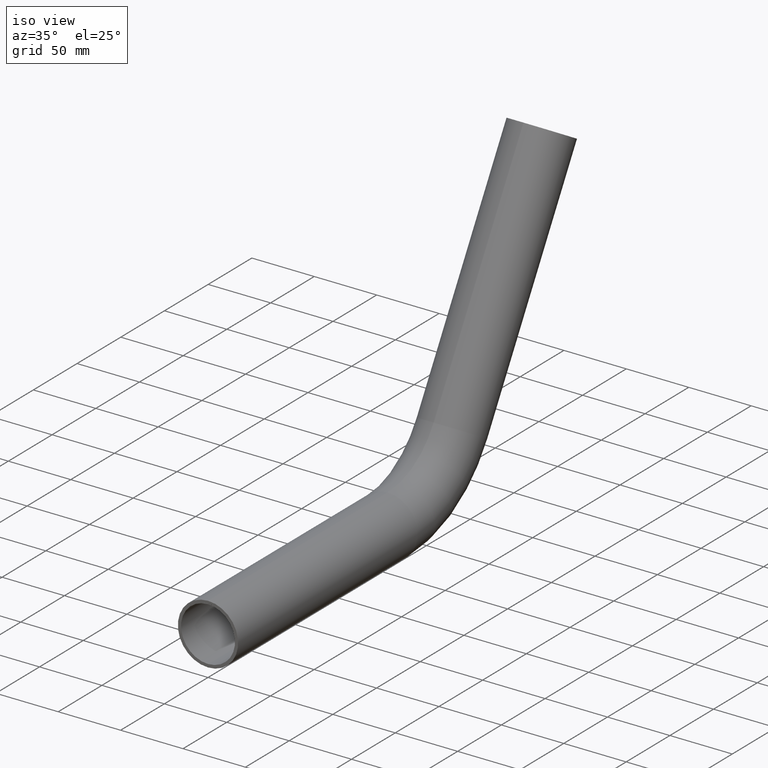
[diagram: clean part render]
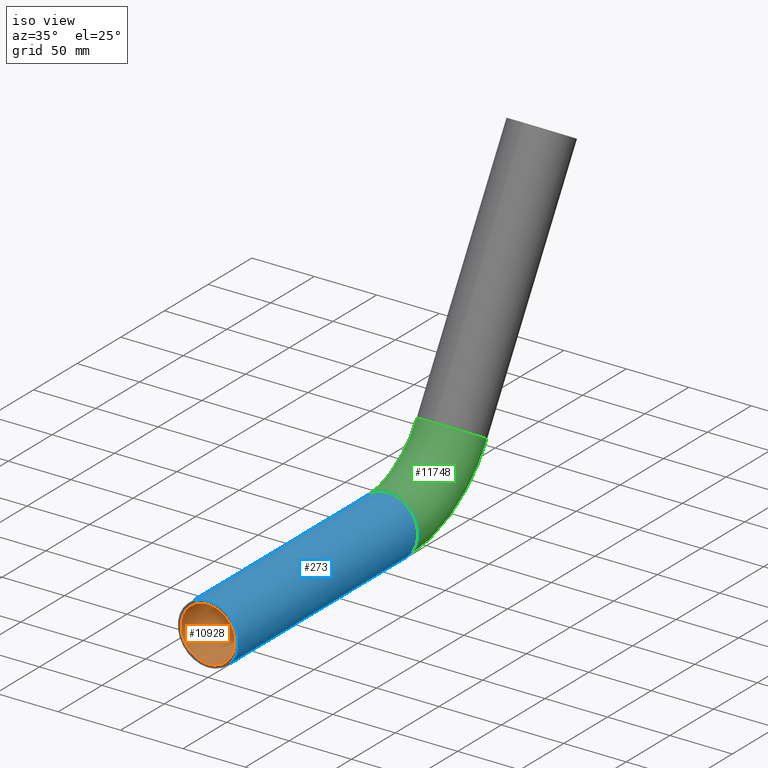
[diagram: same view with three faces highlighted in distinct colors, each labeled with its STEP entity id]
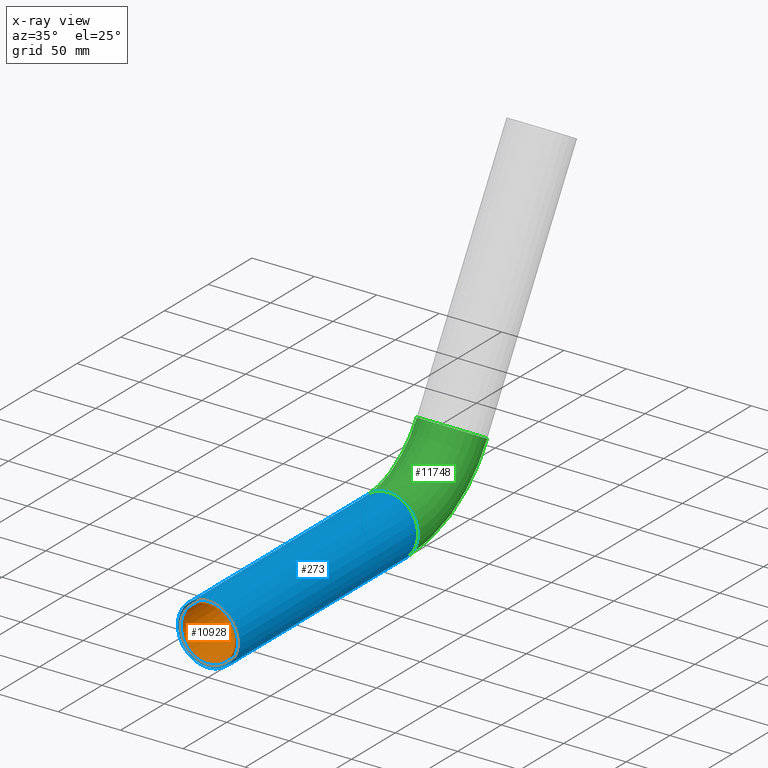
[diagram: x-ray of the same camera — body ghosted, the three highlighted faces saturated]
A machine part, iso view with three faces highlighted in distinct colors.
The next image is the same camera in x-ray (body ghosted, the three faces saturated) — at least one of them is partly hidden behind the body in this view.
Their STEP definitions:

[orange] entity #10928 — the highlighted cylindrical surface (bore or boss wall) has radius 21.65 mm, axis along (-0, -1, 0).
#1343 = EDGE_LOOP ( 'NONE', ( #10386 ) ) ;
#1475 = CARTESIAN_POINT ( 'NONE',  ( 0.000000000000000000, 205.4941040741445306, 0.000000000000000000 ) ) ;
#1621 = CARTESIAN_POINT ( 'NONE',  ( 0.000000000000000000, 205.4941040741445306, -21.65000000000000568 ) ) ;
#2529 = VERTEX_POINT ( 'NONE', #1621 ) ;
#2829 = DIRECTION ( 'NONE',  ( -0.000000000000000000, -1.000000000000000000, 3.632458207091559610E-31 ) ) ;
#2912 = CARTESIAN_POINT ( 'NONE',  ( 0.000000000000000000, 0.000000000000000000, 0.000000000000000000 ) ) ;
#4410 = EDGE_LOOP ( 'NONE', ( #10257 ) ) ;
#4501 = AXIS2_PLACEMENT_3D ( 'NONE', #2912, #9992, #8035 ) ;
#4605 = CIRCLE ( 'NONE', #7846, 21.65000000000000568 ) ;
#5368 = CYLINDRICAL_SURFACE ( 'NONE', #8985, 21.65000000000000568 ) ;
#5599 = CARTESIAN_POINT ( 'NONE',  ( 0.000000000000000000, 0.000000000000000000, 21.65000000000000568 ) ) ;
#5771 = CARTESIAN_POINT ( 'NONE',  ( 0.000000000000000000, 205.4941040741445306, -7.464487448530533640E-29 ) ) ;
#6577 = CIRCLE ( 'NONE', #4501, 21.65000000000000568 ) ;
#7846 = AXIS2_PLACEMENT_3D ( 'NONE', #1475, #9684, #12899 ) ;
#8035 = DIRECTION ( 'NONE',  ( 0.000000000000000000, 0.000000000000000000, 1.000000000000000000 ) ) ;
#8274 = FACE_OUTER_BOUND ( 'NONE', #4410, .T. ) ;
#8818 = EDGE_CURVE ( 'NONE', #2529, #2529, #4605, .T. ) ;
#8897 = FACE_OUTER_BOUND ( 'NONE', #1343, .T. ) ;
#8985 = AXIS2_PLACEMENT_3D ( 'NONE', #5771, #2829, #10929 ) ;
#9684 = DIRECTION ( 'NONE',  ( -0.000000000000000000, 1.000000000000000000, -0.000000000000000000 ) ) ;
#9992 = DIRECTION ( 'NONE',  ( 0.000000000000000000, 1.000000000000000000, 0.000000000000000000 ) ) ;
#10257 = ORIENTED_EDGE ( 'NONE', *, *, #8818, .T. ) ;
#10386 = ORIENTED_EDGE ( 'NONE', *, *, #12968, .F. ) ;
#10928 = ADVANCED_FACE ( 'NONE', ( #8274, #8897 ), #5368, .F. ) ;
#10929 = DIRECTION ( 'NONE',  ( 0.000000000000000000, 0.000000000000000000, -1.000000000000000000 ) ) ;
#11878 = VERTEX_POINT ( 'NONE', #5599 ) ;
#12899 = DIRECTION ( 'NONE',  ( 0.000000000000000000, 0.000000000000000000, -1.000000000000000000 ) ) ;
#12968 = EDGE_CURVE ( 'NONE', #11878, #11878, #6577, .T. ) ;

[blue] entity #273 — the highlighted cylindrical surface (bore or boss wall) has radius 24.15 mm, axis along (-0, -1, 0).
#209 = FACE_OUTER_BOUND ( 'NONE', #9096, .T. ) ;
#273 = ADVANCED_FACE ( 'NONE', ( #209, #12330 ), #12972, .T. ) ;
#663 = DIRECTION ( 'NONE',  ( 0.000000000000000000, 0.000000000000000000, -1.000000000000000000 ) ) ;
#1533 = CARTESIAN_POINT ( 'NONE',  ( 0.000000000000000000, 205.4941040741445306, 24.15000000000000568 ) ) ;
#2068 = VERTEX_POINT ( 'NONE', #10761 ) ;
#2260 = CARTESIAN_POINT ( 'NONE',  ( 0.000000000000000000, 0.000000000000000000, 0.000000000000000000 ) ) ;
#3621 = AXIS2_PLACEMENT_3D ( 'NONE', #11711, #4885, #663 ) ;
#3729 = EDGE_LOOP ( 'NONE', ( #5410 ) ) ;
#3751 = ORIENTED_EDGE ( 'NONE', *, *, #8693, .F. ) ;
#4438 = DIRECTION ( 'NONE',  ( 0.000000000000000000, 1.000000000000000000, 0.000000000000000000 ) ) ;
#4764 = CIRCLE ( 'NONE', #9730, 24.15000000000000568 ) ;
#4885 = DIRECTION ( 'NONE',  ( -0.000000000000000000, -1.000000000000000000, 3.632458207091559610E-31 ) ) ;
#5410 = ORIENTED_EDGE ( 'NONE', *, *, #10852, .T. ) ;
#5503 = CIRCLE ( 'NONE', #8713, 24.15000000000000568 ) ;
#6358 = DIRECTION ( 'NONE',  ( 0.000000000000000000, 1.000000000000000000, 0.000000000000000000 ) ) ;
#7576 = VERTEX_POINT ( 'NONE', #1533 ) ;
#8533 = CARTESIAN_POINT ( 'NONE',  ( 0.000000000000000000, 205.4941040741445306, -7.464487448530533640E-29 ) ) ;
#8693 = EDGE_CURVE ( 'NONE', #7576, #7576, #4764, .T. ) ;
#8713 = AXIS2_PLACEMENT_3D ( 'NONE', #2260, #4438, #12651 ) ;
#9096 = EDGE_LOOP ( 'NONE', ( #3751 ) ) ;
#9730 = AXIS2_PLACEMENT_3D ( 'NONE', #8533, #6358, #12686 ) ;
#10761 = CARTESIAN_POINT ( 'NONE',  ( 0.000000000000000000, 0.000000000000000000, 24.15000000000000568 ) ) ;
#10852 = EDGE_CURVE ( 'NONE', #2068, #2068, #5503, .T. ) ;
#11711 = CARTESIAN_POINT ( 'NONE',  ( 0.000000000000000000, 205.4941040741445306, -7.464487448530533640E-29 ) ) ;
#12330 = FACE_OUTER_BOUND ( 'NONE', #3729, .T. ) ;
#12651 = DIRECTION ( 'NONE',  ( 0.000000000000000000, 0.000000000000000000, 1.000000000000000000 ) ) ;
#12686 = DIRECTION ( 'NONE',  ( 0.000000000000000000, 0.000000000000000000, 1.000000000000000000 ) ) ;
#12972 = CYLINDRICAL_SURFACE ( 'NONE', #3621, 24.15000000000000568 ) ;

[green] entity #11748 — the highlighted toroidal blend (fillet) surface has major radius 85 mm and minor (blend) radius 24.15 mm.
#759 = VERTEX_POINT ( 'NONE', #8807 ) ;
#1252 = TOROIDAL_SURFACE ( 'NONE', #12959, 85.00000000000000000, 24.15000000000000568 ) ;
#1283 = FACE_OUTER_BOUND ( 'NONE', #5401, .T. ) ;
#1533 = CARTESIAN_POINT ( 'NONE',  ( 0.000000000000000000, 205.4941040741445306, 24.15000000000000568 ) ) ;
#2859 = EDGE_CURVE ( 'NONE', #759, #759, #10328, .T. ) ;
#3062 = FACE_OUTER_BOUND ( 'NONE', #12903, .T. ) ;
#4764 = CIRCLE ( 'NONE', #9730, 24.15000000000000568 ) ;
#4907 = DIRECTION ( 'NONE',  ( 0.000000000000000000, 0.4999999999999977796, 0.8660254037844399289 ) ) ;
#5401 = EDGE_LOOP ( 'NONE', ( #8651 ) ) ;
#6358 = DIRECTION ( 'NONE',  ( 0.000000000000000000, 1.000000000000000000, 0.000000000000000000 ) ) ;
#7203 = AXIS2_PLACEMENT_3D ( 'NONE', #10865, #4907, #8972 ) ;
#7576 = VERTEX_POINT ( 'NONE', #1533 ) ;
#8375 = CARTESIAN_POINT ( 'NONE',  ( 0.000000000000000000, 205.4941040741445306, 85.00000000000000000 ) ) ;
#8533 = CARTESIAN_POINT ( 'NONE',  ( 0.000000000000000000, 205.4941040741445306, -7.464487448530533640E-29 ) ) ;
#8651 = ORIENTED_EDGE ( 'NONE', *, *, #8693, .T. ) ;
#8693 = EDGE_CURVE ( 'NONE', #7576, #7576, #4764, .T. ) ;
#8807 = CARTESIAN_POINT ( 'NONE',  ( 0.000000000000000000, 258.1917498944277440, 54.57500000000012363 ) ) ;
#8972 = DIRECTION ( 'NONE',  ( 0.000000000000000000, -0.8660254037844399289, 0.4999999999999976685 ) ) ;
#9730 = AXIS2_PLACEMENT_3D ( 'NONE', #8533, #6358, #12686 ) ;
#10301 = DIRECTION ( 'NONE',  ( 1.000000000000000000, 0.000000000000000000, -0.000000000000000000 ) ) ;
#10328 = CIRCLE ( 'NONE', #7203, 24.15000000000000568 ) ;
#10382 = DIRECTION ( 'NONE',  ( 0.000000000000000000, 0.000000000000000000, -1.000000000000000000 ) ) ;
#10865 = CARTESIAN_POINT ( 'NONE',  ( 0.000000000000000000, 279.1062633958219408, 42.50000000000017764 ) ) ;
#11748 = ADVANCED_FACE ( 'NONE', ( #1283, #3062 ), #1252, .T. ) ;
#12686 = DIRECTION ( 'NONE',  ( 0.000000000000000000, 0.000000000000000000, 1.000000000000000000 ) ) ;
#12788 = ORIENTED_EDGE ( 'NONE', *, *, #2859, .F. ) ;
#12903 = EDGE_LOOP ( 'NONE', ( #12788 ) ) ;
#12959 = AXIS2_PLACEMENT_3D ( 'NONE', #8375, #10301, #10382 ) ;